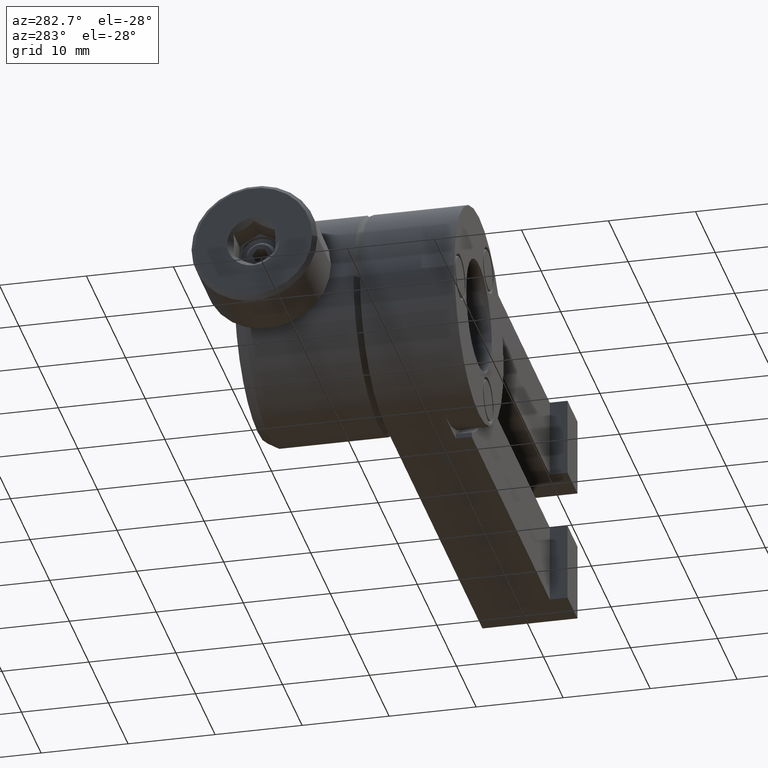
[diagram: clean part render]
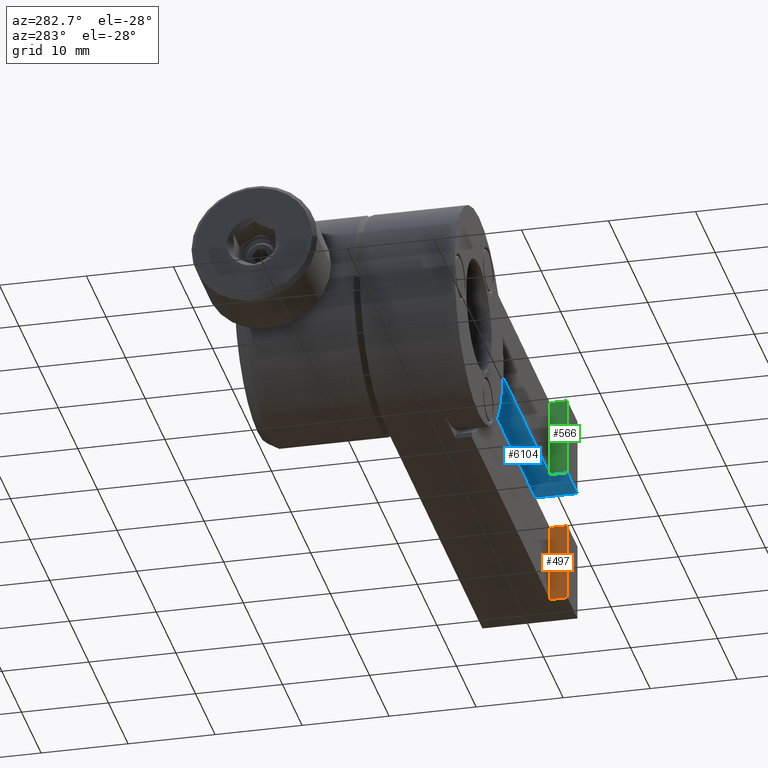
[diagram: same view with three faces highlighted in distinct colors, each labeled with its STEP entity id]
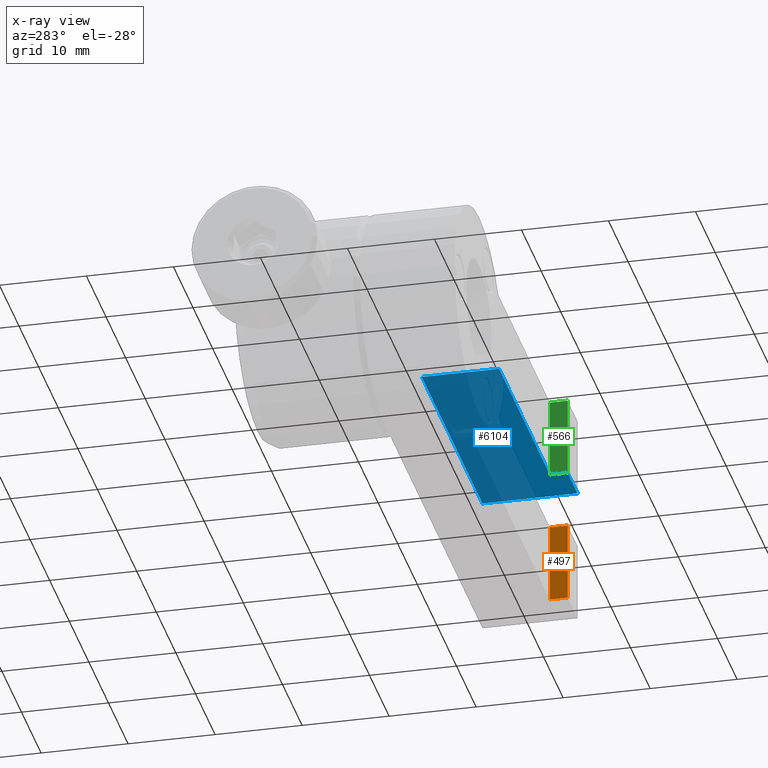
[diagram: x-ray of the same camera — body ghosted, the three highlighted faces saturated]
A machine part, auxiliary view with three faces highlighted in distinct colors.
The next image is the same camera in x-ray (body ghosted, the three faces saturated) — at least one of them is partly hidden behind the body in this view.
Their STEP definitions:

[orange] entity #497 — the highlighted planar face has unit normal (1, 0, -0).
#54 = ORIENTED_EDGE ( 'NONE', *, *, #5521, .F. ) ;
#104 = LINE ( 'NONE', #5002, #3107 ) ;
#263 = EDGE_CURVE ( 'NONE', #1916, #3497, #104, .T. ) ;
#426 = CARTESIAN_POINT ( 'NONE',  ( 49.04306664389137900, -3.191865212235105400, 8.999471541716452500E-015 ) ) ;
#497 = ADVANCED_FACE ( 'NONE', ( #3388 ), #5572, .F. ) ;
#674 = VERTEX_POINT ( 'NONE', #1391 ) ;
#829 = EDGE_LOOP ( 'NONE', ( #2615, #2475, #54, #7137 ) ) ;
#989 = DIRECTION ( 'NONE',  ( 0.0000000000000000000, -1.000000000000000000, 0.0000000000000000000 ) ) ;
#999 = CARTESIAN_POINT ( 'NONE',  ( 49.04306664389137900, -5.223865212235105900, -12.49679999999999900 ) ) ;
#1036 = CARTESIAN_POINT ( 'NONE',  ( 49.04306664389137900, -3.191865212235105400, -12.49679999999999900 ) ) ;
#1360 = VECTOR ( 'NONE', #3296, 1000.000000000000000 ) ;
#1391 = CARTESIAN_POINT ( 'NONE',  ( 49.04306664389137900, -3.191865212235105400, -12.49679999999999900 ) ) ;
#1595 = DIRECTION ( 'NONE',  ( 0.0000000000000000000, -1.000000000000000000, 0.0000000000000000000 ) ) ;
#1761 = AXIS2_PLACEMENT_3D ( 'NONE', #3865, #2761, #4972 ) ;
#1805 = VERTEX_POINT ( 'NONE', #999 ) ;
#1916 = VERTEX_POINT ( 'NONE', #2667 ) ;
#2141 = DIRECTION ( 'NONE',  ( 0.0000000000000000000, 0.0000000000000000000, 1.000000000000000000 ) ) ;
#2213 = CARTESIAN_POINT ( 'NONE',  ( 49.04306664389137900, -5.223865212235105900, 8.999471541716452500E-015 ) ) ;
#2473 = VECTOR ( 'NONE', #1595, 1000.000000000000000 ) ;
#2475 = ORIENTED_EDGE ( 'NONE', *, *, #263, .F. ) ;
#2615 = ORIENTED_EDGE ( 'NONE', *, *, #4051, .T. ) ;
#2667 = CARTESIAN_POINT ( 'NONE',  ( 49.04306664389137900, -3.191865212235105400, -3.365500000000003500 ) ) ;
#2761 = DIRECTION ( 'NONE',  ( 1.000000000000000000, 0.0000000000000000000, -0.0000000000000000000 ) ) ;
#3107 = VECTOR ( 'NONE', #989, 1000.000000000000000 ) ;
#3296 = DIRECTION ( 'NONE',  ( 0.0000000000000000000, 0.0000000000000000000, 1.000000000000000000 ) ) ;
#3388 = FACE_OUTER_BOUND ( 'NONE', #829, .T. ) ;
#3497 = VERTEX_POINT ( 'NONE', #7102 ) ;
#3865 = CARTESIAN_POINT ( 'NONE',  ( 49.04306664389137900, -3.191865212235105400, 8.999471541716452500E-015 ) ) ;
#4051 = EDGE_CURVE ( 'NONE', #1805, #3497, #4570, .T. ) ;
#4570 = LINE ( 'NONE', #2213, #5908 ) ;
#4972 = DIRECTION ( 'NONE',  ( -0.0000000000000000000, 0.0000000000000000000, -1.000000000000000000 ) ) ;
#4984 = EDGE_CURVE ( 'NONE', #674, #1805, #6052, .T. ) ;
#5002 = CARTESIAN_POINT ( 'NONE',  ( 49.04306664389137900, -3.191865212235105400, -3.365500000000003500 ) ) ;
#5521 = EDGE_CURVE ( 'NONE', #674, #1916, #6070, .T. ) ;
#5572 = PLANE ( 'NONE',  #1761 ) ;
#5908 = VECTOR ( 'NONE', #2141, 1000.000000000000000 ) ;
#6052 = LINE ( 'NONE', #1036, #2473 ) ;
#6070 = LINE ( 'NONE', #426, #1360 ) ;
#7102 = CARTESIAN_POINT ( 'NONE',  ( 49.04306664389137900, -5.223865212235105900, -3.365500000000003500 ) ) ;
#7137 = ORIENTED_EDGE ( 'NONE', *, *, #4984, .T. ) ;

[blue] entity #6104 — the highlighted planar face has unit normal (0, -0, 1).
#388 = LINE ( 'NONE', #1794, #577 ) ;
#577 = VECTOR ( 'NONE', #4061, 1000.000000000000000 ) ;
#629 = LINE ( 'NONE', #5098, #4237 ) ;
#693 = CARTESIAN_POINT ( 'NONE',  ( -29.62103515794081700, -5.223865212235105900, 3.365500000000010200 ) ) ;
#842 = EDGE_LOOP ( 'NONE', ( #4228, #1382, #2994, #1270, #7037, #3490 ) ) ;
#1077 = EDGE_CURVE ( 'NONE', #3791, #1913, #4335, .T. ) ;
#1086 = DIRECTION ( 'NONE',  ( 1.000000000000000000, 0.0000000000000000000, -7.006152972442677000E-017 ) ) ;
#1190 = CARTESIAN_POINT ( 'NONE',  ( 49.04306664389137900, -3.191865212235105400, 3.365500000000004400 ) ) ;
#1270 = ORIENTED_EDGE ( 'NONE', *, *, #3546, .F. ) ;
#1327 = AXIS2_PLACEMENT_3D ( 'NONE', #5020, #6171, #1086 ) ;
#1382 = ORIENTED_EDGE ( 'NONE', *, *, #6413, .T. ) ;
#1507 = VECTOR ( 'NONE', #6422, 1000.000000000000000 ) ;
#1625 = VECTOR ( 'NONE', #7126, 1000.000000000000000 ) ;
#1665 = EDGE_CURVE ( 'NONE', #4289, #3791, #629, .T. ) ;
#1794 = CARTESIAN_POINT ( 'NONE',  ( 23.17306664389137800, 5.698134787764893800, 3.365500000000006200 ) ) ;
#1899 = VECTOR ( 'NONE', #6373, 1000.000000000000000 ) ;
#1913 = VERTEX_POINT ( 'NONE', #3839 ) ;
#2178 = EDGE_CURVE ( 'NONE', #4383, #1913, #6176, .T. ) ;
#2994 = ORIENTED_EDGE ( 'NONE', *, *, #5675, .F. ) ;
#3122 = FACE_OUTER_BOUND ( 'NONE', #842, .T. ) ;
#3178 = VECTOR ( 'NONE', #6495, 1000.000000000000000 ) ;
#3490 = ORIENTED_EDGE ( 'NONE', *, *, #1077, .T. ) ;
#3546 = EDGE_CURVE ( 'NONE', #4289, #4976, #5164, .T. ) ;
#3791 = VERTEX_POINT ( 'NONE', #5163 ) ;
#3801 = LINE ( 'NONE', #5469, #3178 ) ;
#3839 = CARTESIAN_POINT ( 'NONE',  ( 49.04306664389137900, -5.223865212235105900, 3.365500000000004400 ) ) ;
#4061 = DIRECTION ( 'NONE',  ( -0.0000000000000000000, -1.000000000000000000, -0.0000000000000000000 ) ) ;
#4228 = ORIENTED_EDGE ( 'NONE', *, *, #2178, .F. ) ;
#4237 = VECTOR ( 'NONE', #5171, 1000.000000000000000 ) ;
#4289 = VERTEX_POINT ( 'NONE', #6554 ) ;
#4335 = LINE ( 'NONE', #693, #1507 ) ;
#4383 = VERTEX_POINT ( 'NONE', #6637 ) ;
#4976 = VERTEX_POINT ( 'NONE', #6195 ) ;
#5020 = CARTESIAN_POINT ( 'NONE',  ( -29.62103515794081700, 5.698134787764893800, 3.365500000000010200 ) ) ;
#5098 = CARTESIAN_POINT ( 'NONE',  ( 54.12306664389138400, 5.698134787764893800, 3.365500000000003900 ) ) ;
#5163 = CARTESIAN_POINT ( 'NONE',  ( 54.12306664389138400, -5.223865212235105900, 3.365500000000003900 ) ) ;
#5164 = LINE ( 'NONE', #7158, #1625 ) ;
#5171 = DIRECTION ( 'NONE',  ( -0.0000000000000000000, -1.000000000000000000, -0.0000000000000000000 ) ) ;
#5469 = CARTESIAN_POINT ( 'NONE',  ( -29.62103515794081700, -3.191865212235105400, 3.365500000000010200 ) ) ;
#5581 = VERTEX_POINT ( 'NONE', #6185 ) ;
#5675 = EDGE_CURVE ( 'NONE', #4976, #5581, #388, .T. ) ;
#6104 = ADVANCED_FACE ( 'NONE', ( #3122 ), #7332, .F. ) ;
#6171 = DIRECTION ( 'NONE',  ( 7.006152972442677000E-017, -0.0000000000000000000, 1.000000000000000000 ) ) ;
#6176 = LINE ( 'NONE', #1190, #1899 ) ;
#6185 = CARTESIAN_POINT ( 'NONE',  ( 23.17306664389137800, -3.191865212235105400, 3.365500000000006200 ) ) ;
#6195 = CARTESIAN_POINT ( 'NONE',  ( 23.17306664389137800, 5.698134787764893800, 3.365500000000006200 ) ) ;
#6373 = DIRECTION ( 'NONE',  ( 0.0000000000000000000, -1.000000000000000000, 0.0000000000000000000 ) ) ;
#6413 = EDGE_CURVE ( 'NONE', #4383, #5581, #3801, .T. ) ;
#6422 = DIRECTION ( 'NONE',  ( -1.000000000000000000, 0.0000000000000000000, 7.006152972442677000E-017 ) ) ;
#6495 = DIRECTION ( 'NONE',  ( -1.000000000000000000, 0.0000000000000000000, 7.006152972442677000E-017 ) ) ;
#6554 = CARTESIAN_POINT ( 'NONE',  ( 54.12306664389138400, 5.698134787764893800, 3.365500000000003900 ) ) ;
#6637 = CARTESIAN_POINT ( 'NONE',  ( 49.04306664389137900, -3.191865212235105400, 3.365500000000004400 ) ) ;
#7037 = ORIENTED_EDGE ( 'NONE', *, *, #1665, .T. ) ;
#7126 = DIRECTION ( 'NONE',  ( -1.000000000000000000, 0.0000000000000000000, 7.006152972442677000E-017 ) ) ;
#7158 = CARTESIAN_POINT ( 'NONE',  ( -29.62103515794081700, 5.698134787764893800, 3.365500000000010200 ) ) ;
#7332 = PLANE ( 'NONE',  #1327 ) ;

[green] entity #566 — the highlighted planar face has unit normal (1, 0, -0).
#267 = CARTESIAN_POINT ( 'NONE',  ( 49.04306664389137900, -3.191865212235105400, 8.999471541716452500E-015 ) ) ;
#340 = VERTEX_POINT ( 'NONE', #6649 ) ;
#566 = ADVANCED_FACE ( 'NONE', ( #2472 ), #3655, .F. ) ;
#728 = LINE ( 'NONE', #2362, #3545 ) ;
#935 = EDGE_CURVE ( 'NONE', #1913, #340, #728, .T. ) ;
#1190 = CARTESIAN_POINT ( 'NONE',  ( 49.04306664389137900, -3.191865212235105400, 3.365500000000004400 ) ) ;
#1291 = EDGE_LOOP ( 'NONE', ( #5379, #6289, #5913, #3705 ) ) ;
#1780 = DIRECTION ( 'NONE',  ( 0.0000000000000000000, 0.0000000000000000000, 1.000000000000000000 ) ) ;
#1899 = VECTOR ( 'NONE', #6373, 1000.000000000000000 ) ;
#1913 = VERTEX_POINT ( 'NONE', #3839 ) ;
#1964 = LINE ( 'NONE', #5779, #2317 ) ;
#2178 = EDGE_CURVE ( 'NONE', #4383, #1913, #6176, .T. ) ;
#2317 = VECTOR ( 'NONE', #5805, 1000.000000000000000 ) ;
#2362 = CARTESIAN_POINT ( 'NONE',  ( 49.04306664389137900, -5.223865212235105900, 8.999471541716452500E-015 ) ) ;
#2472 = FACE_OUTER_BOUND ( 'NONE', #1291, .T. ) ;
#2675 = LINE ( 'NONE', #6891, #5526 ) ;
#3545 = VECTOR ( 'NONE', #4585, 1000.000000000000000 ) ;
#3601 = DIRECTION ( 'NONE',  ( -0.0000000000000000000, 0.0000000000000000000, -1.000000000000000000 ) ) ;
#3655 = PLANE ( 'NONE',  #7084 ) ;
#3705 = ORIENTED_EDGE ( 'NONE', *, *, #2178, .T. ) ;
#3839 = CARTESIAN_POINT ( 'NONE',  ( 49.04306664389137900, -5.223865212235105900, 3.365500000000004400 ) ) ;
#4383 = VERTEX_POINT ( 'NONE', #6637 ) ;
#4585 = DIRECTION ( 'NONE',  ( 0.0000000000000000000, 0.0000000000000000000, 1.000000000000000000 ) ) ;
#4737 = DIRECTION ( 'NONE',  ( 1.000000000000000000, 0.0000000000000000000, -0.0000000000000000000 ) ) ;
#5096 = EDGE_CURVE ( 'NONE', #4383, #5173, #2675, .T. ) ;
#5173 = VERTEX_POINT ( 'NONE', #5680 ) ;
#5196 = EDGE_CURVE ( 'NONE', #5173, #340, #1964, .T. ) ;
#5379 = ORIENTED_EDGE ( 'NONE', *, *, #935, .T. ) ;
#5526 = VECTOR ( 'NONE', #1780, 1000.000000000000000 ) ;
#5680 = CARTESIAN_POINT ( 'NONE',  ( 49.04306664389137900, -3.191865212235105400, 12.49679999999999900 ) ) ;
#5779 = CARTESIAN_POINT ( 'NONE',  ( 49.04306664389137900, -3.191865212235105400, 12.49679999999999900 ) ) ;
#5805 = DIRECTION ( 'NONE',  ( 0.0000000000000000000, -1.000000000000000000, 0.0000000000000000000 ) ) ;
#5913 = ORIENTED_EDGE ( 'NONE', *, *, #5096, .F. ) ;
#6176 = LINE ( 'NONE', #1190, #1899 ) ;
#6289 = ORIENTED_EDGE ( 'NONE', *, *, #5196, .F. ) ;
#6373 = DIRECTION ( 'NONE',  ( 0.0000000000000000000, -1.000000000000000000, 0.0000000000000000000 ) ) ;
#6637 = CARTESIAN_POINT ( 'NONE',  ( 49.04306664389137900, -3.191865212235105400, 3.365500000000004400 ) ) ;
#6649 = CARTESIAN_POINT ( 'NONE',  ( 49.04306664389137900, -5.223865212235105900, 12.49679999999999900 ) ) ;
#6891 = CARTESIAN_POINT ( 'NONE',  ( 49.04306664389137900, -3.191865212235105400, 8.999471541716452500E-015 ) ) ;
#7084 = AXIS2_PLACEMENT_3D ( 'NONE', #267, #4737, #3601 ) ;